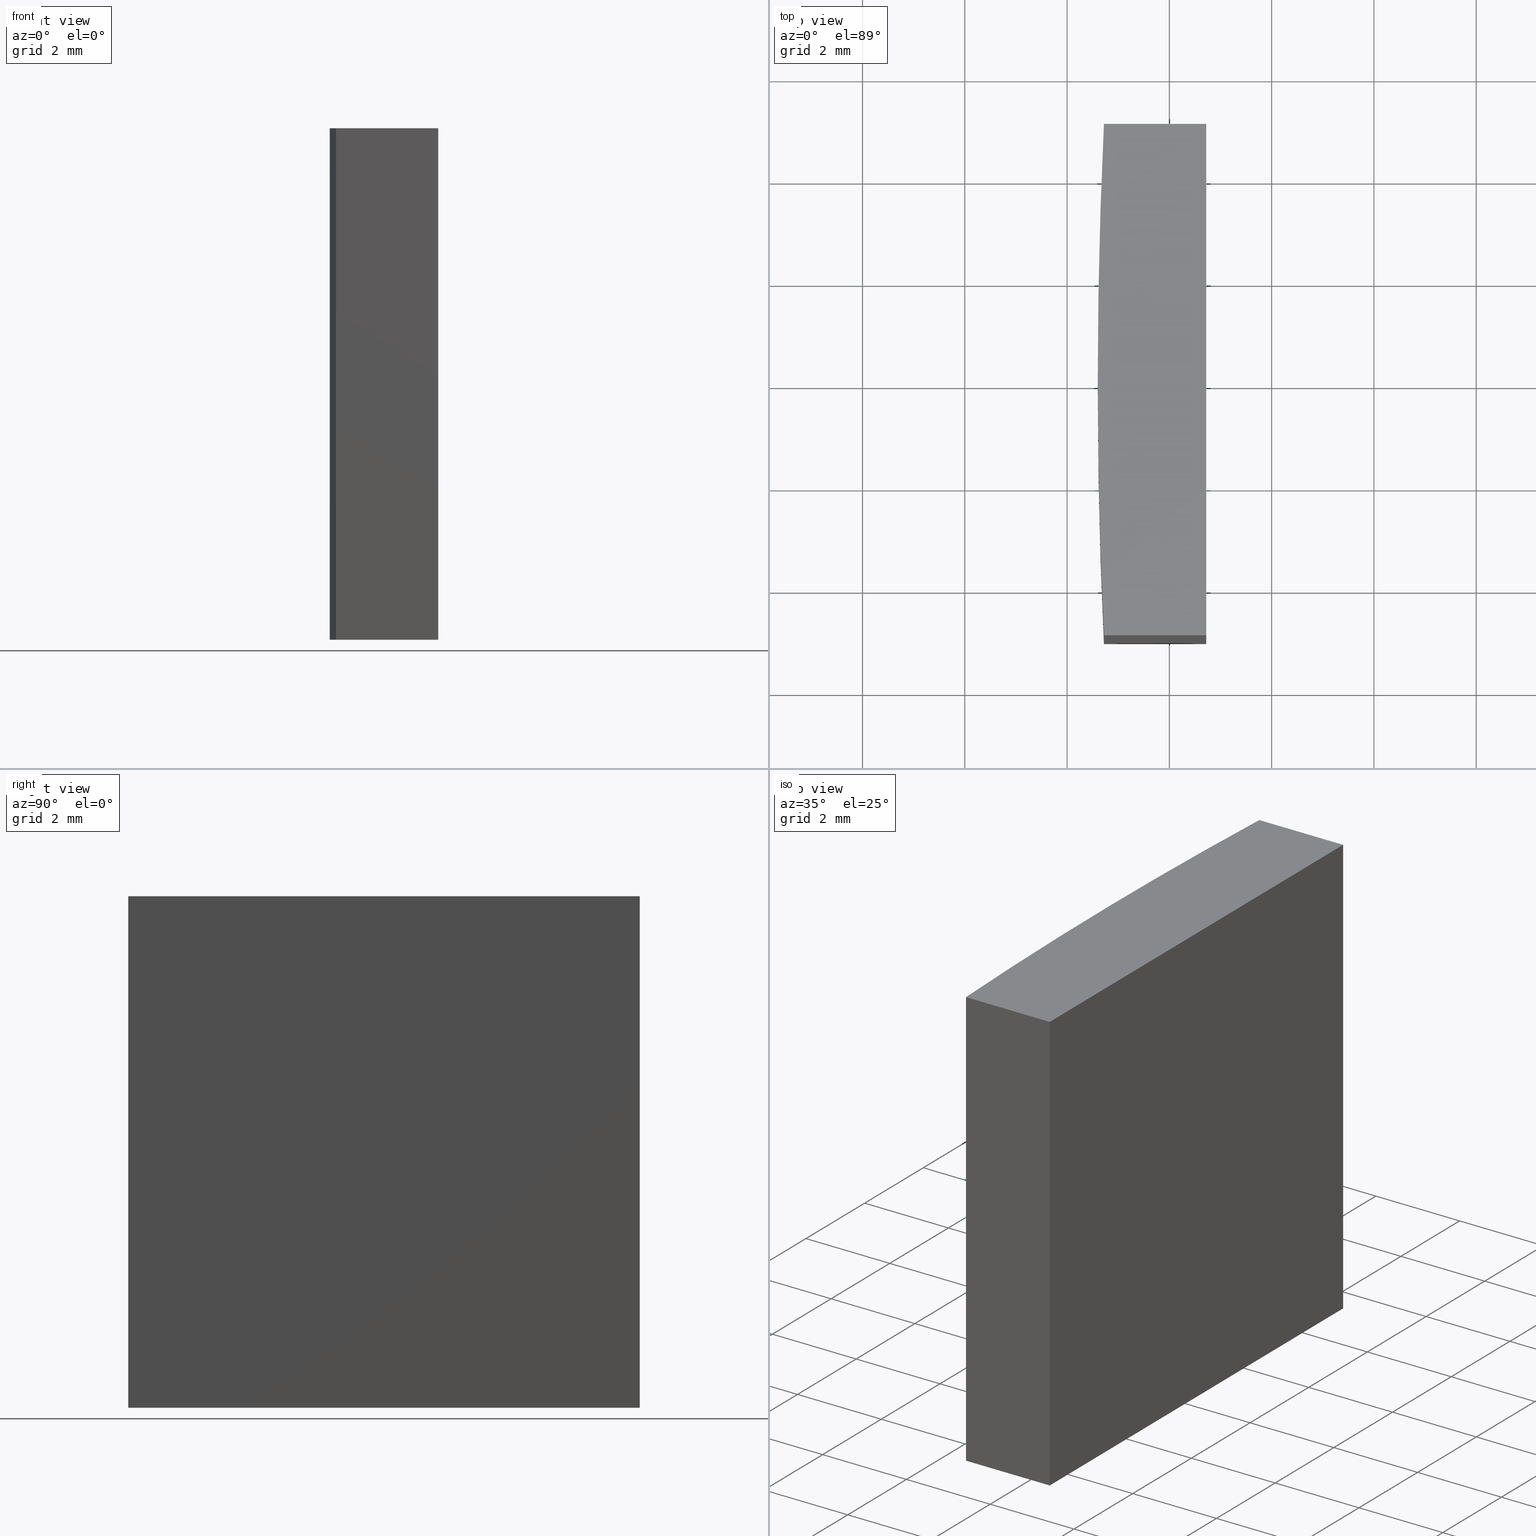
[diagram: canonical four-view strip — front | top / right | iso, engineering-drawing reading convention]
A machine part, canonical four-view strip (front | top / right | iso — engineering-drawing reading convention). The complete STEP part file that produces these views, byte-faithful:
ISO-10303-21;
HEADER;
FILE_DESCRIPTION (( 'STEP AP203' ),
    '1' );
FILE_NAME ('155524.STEP',
    '2024-05-13T03:17:25',
    ( '' ),
    ( '' ),
    'SwSTEP 2.0',
    'SolidWorks 2020',
    '' );
FILE_SCHEMA (( 'CONFIG_CONTROL_DESIGN' ));
ENDSEC;

DATA;
#1 = DIRECTION ( 'NONE',  ( -1.000000000000000000, 0.000000000000000000, 0.000000000000000000 ) ) ;
#2 = AXIS2_PLACEMENT_3D ( 'NONE', #149, #51, #48 ) ;
#3 = VERTEX_POINT ( 'NONE', #7 ) ;
#4 = FACE_OUTER_BOUND ( 'NONE', #53, .T. ) ;
#5 = DATE_AND_TIME ( #52, #150 ) ;
#6 = PERSON_AND_ORGANIZATION_ROLE ( 'classification_officer' ) ;
#7 = CARTESIAN_POINT ( 'NONE',  ( -101.2790394997939529, -5.000000000000000888, 0.000000000000000000 ) ) ;
#8 = AXIS2_PLACEMENT_3D ( 'NONE', #268, #106, #17 ) ;
#9 = LOCAL_TIME ( 11, 17, 25.00000000000000000, #25 ) ;
#10 = APPROVAL_STATUS ( 'not_yet_approved' ) ;
#11 = APPLICATION_PROTOCOL_DEFINITION ( 'international standard', 'config_control_design', 1994, #183 ) ;
#12 = ORIENTED_EDGE ( 'NONE', *, *, #160, .F. ) ;
#13 = PERSON_AND_ORGANIZATION_ROLE ( 'design_owner' ) ;
#14 = ORIENTED_EDGE ( 'NONE', *, *, #24, .F. ) ;
#15 = CC_DESIGN_APPROVAL ( #147, ( #114 ) ) ;
#16 = FACE_OUTER_BOUND ( 'NONE', #70, .T. ) ;
#17 = DIRECTION ( 'NONE',  ( 1.000000000000000000, 0.000000000000000000, 0.000000000000000000 ) ) ;
#18 = ORIENTED_EDGE ( 'NONE', *, *, #109, .T. ) ;
#19 = LINE ( 'NONE', #163, #231 ) ;
#20 = CARTESIAN_POINT ( 'NONE',  ( 0.000000000000000000, 0.000000000000000000, 10.00000000000000000 ) ) ;
#21 = VECTOR ( 'NONE', #257, 1000.000000000000000 ) ;
#22 = EDGE_CURVE ( 'NONE', #153, #134, #55, .T. ) ;
#23 = APPROVAL_PERSON_ORGANIZATION ( #94, #145, #133 ) ;
#24 = EDGE_CURVE ( 'NONE', #153, #186, #138, .T. ) ;
#25 = COORDINATED_UNIVERSAL_TIME_OFFSET ( 8, 0, .AHEAD. ) ;
#26 = PERSON_AND_ORGANIZATION ( #202, #272 ) ;
#27 = VERTEX_POINT ( 'NONE', #222 ) ;
#28 = COORDINATED_UNIVERSAL_TIME_OFFSET ( 8, 0, .AHEAD. ) ;
#29 = PLANE ( 'NONE',  #256 ) ;
#30 = CC_DESIGN_DATE_AND_TIME_ASSIGNMENT ( #187, #263, ( #114 ) ) ;
#31 = AXIS2_PLACEMENT_3D ( 'NONE', #124, #63, #126 ) ;
#32 = ORIENTED_EDGE ( 'NONE', *, *, #160, .T. ) ;
#33 = CARTESIAN_POINT ( 'NONE',  ( 0.000000000000000000, 0.000000000000000000, 0.000000000000000000 ) ) ;
#34 = ORIENTED_EDGE ( 'NONE', *, *, #251, .F. ) ;
#35 = ORIENTED_EDGE ( 'NONE', *, *, #41, .T. ) ;
#36 = DIRECTION ( 'NONE',  ( 0.000000000000000000, -0.000000000000000000, 1.000000000000000000 ) ) ;
#37 = ORIENTED_EDGE ( 'NONE', *, *, #59, .T. ) ;
#38 = LINE ( 'NONE', #200, #50 ) ;
#39 = LINE ( 'NONE', #252, #198 ) ;
#40 = CYLINDRICAL_SURFACE ( 'NONE', #89, 103.4000000000000057 ) ;
#41 = EDGE_CURVE ( 'NONE', #57, #3, #199, .T. ) ;
#42 = LINE ( 'NONE', #167, #21 ) ;
#43 = AXIS2_PLACEMENT_3D ( 'NONE', #125, #205, #79 ) ;
#44 = EDGE_CURVE ( 'NONE', #220, #153, #227, .T. ) ;
#45 = AXIS2_PLACEMENT_3D ( 'NONE', #60, #203, #178 ) ;
#46 = VECTOR ( 'NONE', #82, 1000.000000000000000 ) ;
#47 = CC_DESIGN_DATE_AND_TIME_ASSIGNMENT ( #196, #92, ( #264 ) ) ;
#48 = DIRECTION ( 'NONE',  ( 1.000000000000000000, 0.000000000000000000, -0.000000000000000000 ) ) ;
#49 = DIRECTION ( 'NONE',  ( 0.000000000000000000, 0.000000000000000000, 1.000000000000000000 ) ) ;
#50 = VECTOR ( 'NONE', #159, 1000.000000000000000 ) ;
#51 = DIRECTION ( 'NONE',  ( 0.000000000000000000, 0.000000000000000000, 1.000000000000000000 ) ) ;
#52 = CALENDAR_DATE ( 2024, 13, 5 ) ;
#53 = EDGE_LOOP ( 'NONE', ( #116, #246, #112, #161, #18 ) ) ;
#54 = APPROVAL_ROLE ( '' ) ;
#55 = CIRCLE ( 'NONE', #31, 103.4000000000000057 ) ;
#56 = EDGE_LOOP ( 'NONE', ( #156, #158, #99, #35 ) ) ;
#57 = VERTEX_POINT ( 'NONE', #225 ) ;
#58 = COORDINATED_UNIVERSAL_TIME_OFFSET ( 8, 0, .AHEAD. ) ;
#59 = EDGE_CURVE ( 'NONE', #117, #3, #204, .T. ) ;
#60 = CARTESIAN_POINT ( 'NONE',  ( 0.000000000000000000, 0.000000000000000000, 0.000000000000000000 ) ) ;
#61 = VERTEX_POINT ( 'NONE', #87 ) ;
#62 = CARTESIAN_POINT ( 'NONE',  ( -103.2790394997939529, -5.000000000000000888, 10.00000000000000000 ) ) ;
#63 = DIRECTION ( 'NONE',  ( 0.000000000000000000, 0.000000000000000000, 1.000000000000000000 ) ) ;
#64 = DIRECTION ( 'NONE',  ( -0.000000000000000000, -0.000000000000000000, -1.000000000000000000 ) ) ;
#65 = LINE ( 'NONE', #123, #206 ) ;
#66 = APPROVAL ( #266, 'δָ��' ) ;
#67 = ORIENTED_EDGE ( 'NONE', *, *, #235, .T. ) ;
#68 = COORDINATED_UNIVERSAL_TIME_OFFSET ( 8, 0, .AHEAD. ) ;
#69 = PRODUCT_RELATED_PRODUCT_CATEGORY ( 'detail', '', ( #238 ) ) ;
#70 = EDGE_LOOP ( 'NONE', ( #12, #162, #81, #193, #240 ) ) ;
#71 = MECHANICAL_CONTEXT ( 'NONE', #115, 'mechanical' ) ;
#72 = FACE_OUTER_BOUND ( 'NONE', #73, .T. ) ;
#73 = EDGE_LOOP ( 'NONE', ( #37, #97, #248, #152 ) ) ;
#74 = VERTEX_POINT ( 'NONE', #155 ) ;
#75 = CALENDAR_DATE ( 2024, 13, 5 ) ;
#76 = ORIENTED_EDGE ( 'NONE', *, *, #229, .T. ) ;
#77 = ADVANCED_FACE ( 'NONE', ( #72 ), #29, .F. ) ;
#78 = ORIENTED_EDGE ( 'NONE', *, *, #229, .F. ) ;
#79 = DIRECTION ( 'NONE',  ( -1.000000000000000000, 0.000000000000000000, 0.000000000000000000 ) ) ;
#80 = EDGE_LOOP ( 'NONE', ( #14, #190, #76, #32 ) ) ;
#81 = ORIENTED_EDGE ( 'NONE', *, *, #131, .F. ) ;
#82 = DIRECTION ( 'NONE',  ( -0.000000000000000000, -0.000000000000000000, -1.000000000000000000 ) ) ;
#83 = EDGE_LOOP ( 'NONE', ( #105, #218, #209, #34 ) ) ;
#84 = DIRECTION ( 'NONE',  ( -0.000000000000000000, -0.000000000000000000, -1.000000000000000000 ) ) ;
#85 = AXIS2_PLACEMENT_3D ( 'NONE', #139, #180, #249 ) ;
#86 = DIRECTION ( 'NONE',  ( -0.000000000000000000, 1.000000000000000000, -0.000000000000000000 ) ) ;
#87 = CARTESIAN_POINT ( 'NONE',  ( -101.2790394997939529, 5.000000000000000888, 10.00000000000000000 ) ) ;
#88 = CC_DESIGN_PERSON_AND_ORGANIZATION_ASSIGNMENT ( #26, #188, ( #208 ) ) ;
#89 = AXIS2_PLACEMENT_3D ( 'NONE', #20, #84, #164 ) ;
#90 = CARTESIAN_POINT ( 'NONE',  ( -103.2790394997939529, -5.000000000000000888, 10.00000000000000000 ) ) ;
#91 = ORIENTED_EDGE ( 'NONE', *, *, #171, .T. ) ;
#92 = DATE_TIME_ROLE ( 'creation_date' ) ;
#93 = CC_DESIGN_PERSON_AND_ORGANIZATION_ASSIGNMENT ( #262, #13, ( #238 ) ) ;
#94 = PERSON_AND_ORGANIZATION ( #202, #272 ) ;
#95 = CC_DESIGN_APPROVAL ( #145, ( #208 ) ) ;
#96 = CALENDAR_DATE ( 2024, 13, 5 ) ;
#97 = ORIENTED_EDGE ( 'NONE', *, *, #41, .F. ) ;
#98 = PERSON_AND_ORGANIZATION ( #202, #272 ) ;
#99 = ORIENTED_EDGE ( 'NONE', *, *, #255, .F. ) ;
#100 =( NAMED_UNIT ( * ) SI_UNIT ( $, .STERADIAN. ) SOLID_ANGLE_UNIT ( ) );
#101 = AXIS2_PLACEMENT_3D ( 'NONE', #269, #219, #197 ) ;
#102 = CARTESIAN_POINT ( 'NONE',  ( -103.4000000000000057, 0.000000000000000000, 0.000000000000000000 ) ) ;
#103 = DIRECTION ( 'NONE',  ( -1.000000000000000000, -0.000000000000000000, -0.000000000000000000 ) ) ;
#104 = ADVANCED_FACE ( 'NONE', ( #244 ), #217, .F. ) ;
#105 = ORIENTED_EDGE ( 'NONE', *, *, #22, .F. ) ;
#106 = DIRECTION ( 'NONE',  ( 0.000000000000000000, 0.000000000000000000, 1.000000000000000000 ) ) ;
#107 = CARTESIAN_POINT ( 'NONE',  ( -103.2790394997939529, -5.000000000000000888, 0.000000000000000000 ) ) ;
#108 = LOCAL_TIME ( 11, 17, 25.00000000000000000, #175 ) ;
#109 = EDGE_CURVE ( 'NONE', #61, #220, #42, .T. ) ;
#110 = VECTOR ( 'NONE', #273, 1000.000000000000000 ) ;
#111 = PERSON_AND_ORGANIZATION ( #202, #272 ) ;
#112 = ORIENTED_EDGE ( 'NONE', *, *, #130, .T. ) ;
#113 = PERSON_AND_ORGANIZATION ( #202, #272 ) ;
#114 = SECURITY_CLASSIFICATION ( '', '', #214 ) ;
#115 = APPLICATION_CONTEXT ( 'configuration controlled 3d designs of mechanical parts and assemblies' ) ;
#116 = ORIENTED_EDGE ( 'NONE', *, *, #44, .T. ) ;
#117 = VERTEX_POINT ( 'NONE', #172 ) ;
#118 = UNCERTAINTY_MEASURE_WITH_UNIT (LENGTH_MEASURE( 1.000000000000000082E-05 ), #174, 'distance_accuracy_value', 'NONE');
#119 = CARTESIAN_POINT ( 'NONE',  ( -103.4000000000000057, 0.000000000000000000, 10.00000000000000000 ) ) ;
#120 = MANIFOLD_SOLID_BREP ( '͹̨-����1', #191 ) ;
#121 = PLANE ( 'NONE',  #85 ) ;
#122 = DIRECTION ( 'NONE',  ( -0.000000000000000000, -0.000000000000000000, -1.000000000000000000 ) ) ;
#123 = CARTESIAN_POINT ( 'NONE',  ( -101.2790394997939529, 5.000000000000000888, 10.00000000000000000 ) ) ;
#124 = CARTESIAN_POINT ( 'NONE',  ( 0.000000000000000000, 0.000000000000000000, 10.00000000000000000 ) ) ;
#125 = CARTESIAN_POINT ( 'NONE',  ( 0.000000000000000000, 0.000000000000000000, 10.00000000000000000 ) ) ;
#126 = DIRECTION ( 'NONE',  ( 1.000000000000000000, 0.000000000000000000, 0.000000000000000000 ) ) ;
#127 = ADVANCED_FACE ( 'NONE', ( #4 ), #234, .T. ) ;
#128 = VECTOR ( 'NONE', #223, 1000.000000000000000 ) ;
#129 = CC_DESIGN_APPROVAL ( #66, ( #264 ) ) ;
#130 = EDGE_CURVE ( 'NONE', #134, #57, #258, .T. ) ;
#131 = EDGE_CURVE ( 'NONE', #3, #27, #270, .T. ) ;
#132 = PERSON_AND_ORGANIZATION_ROLE ( 'creator' ) ;
#133 = APPROVAL_ROLE ( '' ) ;
#134 = VERTEX_POINT ( 'NONE', #62 ) ;
#135 = APPLICATION_PROTOCOL_DEFINITION ( 'international standard', 'config_control_design', 1994, #115 ) ;
#136 = CIRCLE ( 'NONE', #8, 103.4000000000000057 ) ;
#137 = APPROVAL_DATE_TIME ( #241, #147 ) ;
#138 = LINE ( 'NONE', #119, #265 ) ;
#139 = CARTESIAN_POINT ( 'NONE',  ( -103.2790394997939529, 5.000000000000000888, 10.00000000000000000 ) ) ;
#140 = CARTESIAN_POINT ( 'NONE',  ( -101.2790394997939529, 5.000000000000000888, 0.000000000000000000 ) ) ;
#141 = DESIGN_CONTEXT ( 'detailed design', #183, 'design' ) ;
#142 = CARTESIAN_POINT ( 'NONE',  ( -103.4000000000000057, 0.000000000000000000, 10.00000000000000000 ) ) ;
#143 = CYLINDRICAL_SURFACE ( 'NONE', #43, 103.4000000000000057 ) ;
#144 = VECTOR ( 'NONE', #86, 1000.000000000000000 ) ;
#145 = APPROVAL ( #151, 'δָ��' ) ;
#146 = APPROVAL_PERSON_ORGANIZATION ( #157, #66, #177 ) ;
#147 = APPROVAL ( #10, 'δָ��' ) ;
#148 = APPROVAL_DATE_TIME ( #213, #145 ) ;
#149 = CARTESIAN_POINT ( 'NONE',  ( 0.000000000000000000, 0.000000000000000000, 10.00000000000000000 ) ) ;
#150 = LOCAL_TIME ( 11, 17, 25.00000000000000000, #68 ) ;
#151 = APPROVAL_STATUS ( 'not_yet_approved' ) ;
#152 = ORIENTED_EDGE ( 'NONE', *, *, #251, .T. ) ;
#153 = VERTEX_POINT ( 'NONE', #142 ) ;
#154 = CALENDAR_DATE ( 2024, 13, 5 ) ;
#155 = CARTESIAN_POINT ( 'NONE',  ( -103.2790394997939529, 5.000000000000000888, 0.000000000000000000 ) ) ;
#156 = ORIENTED_EDGE ( 'NONE', *, *, #131, .T. ) ;
#157 = PERSON_AND_ORGANIZATION ( #202, #272 ) ;
#158 = ORIENTED_EDGE ( 'NONE', *, *, #171, .F. ) ;
#159 = DIRECTION ( 'NONE',  ( -0.000000000000000000, -0.000000000000000000, -1.000000000000000000 ) ) ;
#160 = EDGE_CURVE ( 'NONE', #74, #186, #136, .T. ) ;
#161 = ORIENTED_EDGE ( 'NONE', *, *, #255, .T. ) ;
#162 = ORIENTED_EDGE ( 'NONE', *, *, #235, .F. ) ;
#163 = CARTESIAN_POINT ( 'NONE',  ( -103.2790394997939529, 5.000000000000000888, 0.000000000000000000 ) ) ;
#164 = DIRECTION ( 'NONE',  ( -1.000000000000000000, 0.000000000000000000, 0.000000000000000000 ) ) ;
#165 = DIRECTION ( 'NONE',  ( 1.000000000000000000, 0.000000000000000000, 0.000000000000000000 ) ) ;
#166 = DIRECTION ( 'NONE',  ( -0.000000000000000000, 1.000000000000000000, -0.000000000000000000 ) ) ;
#167 = CARTESIAN_POINT ( 'NONE',  ( -103.2790394997939529, 5.000000000000000888, 10.00000000000000000 ) ) ;
#168 = ADVANCED_FACE ( 'NONE', ( #226 ), #121, .F. ) ;
#169 = CIRCLE ( 'NONE', #45, 103.4000000000000057 ) ;
#170 = DIRECTION ( 'NONE',  ( 0.000000000000000000, 0.000000000000000000, 1.000000000000000000 ) ) ;
#171 = EDGE_CURVE ( 'NONE', #61, #27, #221, .T. ) ;
#172 = CARTESIAN_POINT ( 'NONE',  ( -103.2790394997939529, -5.000000000000000888, 0.000000000000000000 ) ) ;
#173 = ORIENTED_EDGE ( 'NONE', *, *, #109, .F. ) ;
#174 =( LENGTH_UNIT ( ) NAMED_UNIT ( * ) SI_UNIT ( .MILLI., .METRE. ) );
#175 = COORDINATED_UNIVERSAL_TIME_OFFSET ( 8, 0, .AHEAD. ) ;
#176 =( NAMED_UNIT ( * ) PLANE_ANGLE_UNIT ( ) SI_UNIT ( $, .RADIAN. ) );
#177 = APPROVAL_ROLE ( '' ) ;
#178 = DIRECTION ( 'NONE',  ( 1.000000000000000000, 0.000000000000000000, 0.000000000000000000 ) ) ;
#179 = CARTESIAN_POINT ( 'NONE',  ( -101.2790394997939529, -5.000000000000000888, 10.00000000000000000 ) ) ;
#180 = DIRECTION ( 'NONE',  ( 0.000000000000000000, -1.000000000000000000, 0.000000000000000000 ) ) ;
#181 = DIRECTION ( 'NONE',  ( 0.000000000000000000, 0.000000000000000000, 1.000000000000000000 ) ) ;
#182 = PLANE ( 'NONE',  #101 ) ;
#183 = APPLICATION_CONTEXT ( 'configuration controlled 3d designs of mechanical parts and assemblies' ) ;
#184 = CC_DESIGN_PERSON_AND_ORGANIZATION_ASSIGNMENT ( #98, #132, ( #208 ) ) ;
#185 =( GEOMETRIC_REPRESENTATION_CONTEXT ( 3 ) GLOBAL_UNCERTAINTY_ASSIGNED_CONTEXT ( ( #118 ) ) GLOBAL_UNIT_ASSIGNED_CONTEXT ( ( #174, #176, #100 ) ) REPRESENTATION_CONTEXT ( 'NONE', 'WORKASPACE' ) );
#186 = VERTEX_POINT ( 'NONE', #102 ) ;
#187 = DATE_AND_TIME ( #154, #242 ) ;
#188 = PERSON_AND_ORGANIZATION_ROLE ( 'design_supplier' ) ;
#189 = CC_DESIGN_PERSON_AND_ORGANIZATION_ASSIGNMENT ( #111, #6, ( #114 ) ) ;
#190 = ORIENTED_EDGE ( 'NONE', *, *, #44, .F. ) ;
#191 = CLOSED_SHELL ( 'NONE', ( #259, #245, #77, #104, #168, #127, #195 ) ) ;
#192 = APPROVAL_DATE_TIME ( #5, #66 ) ;
#193 = ORIENTED_EDGE ( 'NONE', *, *, #59, .F. ) ;
#194 = DIRECTION ( 'NONE',  ( 0.000000000000000000, 1.000000000000000000, 0.000000000000000000 ) ) ;
#195 = ADVANCED_FACE ( 'NONE', ( #16 ), #182, .F. ) ;
#196 = DATE_AND_TIME ( #243, #9 ) ;
#197 = DIRECTION ( 'NONE',  ( 1.000000000000000000, 0.000000000000000000, -0.000000000000000000 ) ) ;
#198 = VECTOR ( 'NONE', #64, 1000.000000000000000 ) ;
#199 = LINE ( 'NONE', #179, #210 ) ;
#200 = CARTESIAN_POINT ( 'NONE',  ( -103.2790394997939529, 5.000000000000000888, 10.00000000000000000 ) ) ;
#201 = CARTESIAN_POINT ( 'NONE',  ( 0.000000000000000000, 0.000000000000000000, 10.00000000000000000 ) ) ;
#202 = PERSON ( 'δָ��', 'δָ��', 'δָ��', ('δָ��'), ('δָ��'), ('δָ��') ) ;
#203 = DIRECTION ( 'NONE',  ( 0.000000000000000000, 0.000000000000000000, 1.000000000000000000 ) ) ;
#204 = LINE ( 'NONE', #107, #110 ) ;
#205 = DIRECTION ( 'NONE',  ( -0.000000000000000000, -0.000000000000000000, -1.000000000000000000 ) ) ;
#206 = VECTOR ( 'NONE', #166, 1000.000000000000000 ) ;
#207 = EDGE_CURVE ( 'NONE', #186, #117, #169, .T. ) ;
#208 = PRODUCT_DEFINITION_FORMATION_WITH_SPECIFIED_SOURCE ( '�κ�', '', #238, .NOT_KNOWN. ) ;
#209 = ORIENTED_EDGE ( 'NONE', *, *, #207, .T. ) ;
#210 = VECTOR ( 'NONE', #250, 1000.000000000000000 ) ;
#211 = PERSON_AND_ORGANIZATION_ROLE ( 'creator' ) ;
#212 = PRODUCT_DEFINITION_SHAPE ( 'NONE', 'NONE',  #264 ) ;
#213 = DATE_AND_TIME ( #96, #232 ) ;
#214 = SECURITY_CLASSIFICATION_LEVEL ( 'unclassified' ) ;
#215 = AXIS2_PLACEMENT_3D ( 'NONE', #201, #181, #165 ) ;
#216 = SHAPE_DEFINITION_REPRESENTATION ( #212, #274 ) ;
#217 = PLANE ( 'NONE',  #260 ) ;
#218 = ORIENTED_EDGE ( 'NONE', *, *, #24, .T. ) ;
#219 = DIRECTION ( 'NONE',  ( 0.000000000000000000, 0.000000000000000000, 1.000000000000000000 ) ) ;
#220 = VERTEX_POINT ( 'NONE', #224 ) ;
#221 = LINE ( 'NONE', #247, #46 ) ;
#222 = CARTESIAN_POINT ( 'NONE',  ( -101.2790394997939529, 5.000000000000000888, 0.000000000000000000 ) ) ;
#223 = DIRECTION ( 'NONE',  ( 1.000000000000000000, 0.000000000000000000, 0.000000000000000000 ) ) ;
#224 = CARTESIAN_POINT ( 'NONE',  ( -103.2790394997939529, 5.000000000000000888, 10.00000000000000000 ) ) ;
#225 = CARTESIAN_POINT ( 'NONE',  ( -101.2790394997939529, -5.000000000000000888, 10.00000000000000000 ) ) ;
#226 = FACE_OUTER_BOUND ( 'NONE', #237, .T. ) ;
#227 = CIRCLE ( 'NONE', #215, 103.4000000000000057 ) ;
#228 = APPROVAL_PERSON_ORGANIZATION ( #113, #147, #54 ) ;
#229 = EDGE_CURVE ( 'NONE', #220, #74, #38, .T. ) ;
#230 = CARTESIAN_POINT ( 'NONE',  ( -101.2790394997939529, 5.000000000000000888, 10.00000000000000000 ) ) ;
#231 = VECTOR ( 'NONE', #103, 1000.000000000000000 ) ;
#232 = LOCAL_TIME ( 11, 17, 25.00000000000000000, #58 ) ;
#233 = CC_DESIGN_PERSON_AND_ORGANIZATION_ASSIGNMENT ( #236, #211, ( #264 ) ) ;
#234 = PLANE ( 'NONE',  #2 ) ;
#235 = EDGE_CURVE ( 'NONE', #27, #74, #19, .T. ) ;
#236 = PERSON_AND_ORGANIZATION ( #202, #272 ) ;
#237 = EDGE_LOOP ( 'NONE', ( #67, #78, #173, #91 ) ) ;
#238 = PRODUCT ( '155524', '155524', '', ( #71 ) ) ;
#239 = DIRECTION ( 'NONE',  ( 1.000000000000000000, 0.000000000000000000, 0.000000000000000000 ) ) ;
#240 = ORIENTED_EDGE ( 'NONE', *, *, #207, .F. ) ;
#241 = DATE_AND_TIME ( #75, #108 ) ;
#242 = LOCAL_TIME ( 11, 17, 25.00000000000000000, #28 ) ;
#243 = CALENDAR_DATE ( 2024, 13, 5 ) ;
#244 = FACE_OUTER_BOUND ( 'NONE', #56, .T. ) ;
#245 = ADVANCED_FACE ( 'NONE', ( #254 ), #40, .T. ) ;
#246 = ORIENTED_EDGE ( 'NONE', *, *, #22, .T. ) ;
#247 = CARTESIAN_POINT ( 'NONE',  ( -101.2790394997939529, 5.000000000000000888, 10.00000000000000000 ) ) ;
#248 = ORIENTED_EDGE ( 'NONE', *, *, #130, .F. ) ;
#249 = DIRECTION ( 'NONE',  ( 0.000000000000000000, -0.000000000000000000, -1.000000000000000000 ) ) ;
#250 = DIRECTION ( 'NONE',  ( -0.000000000000000000, -0.000000000000000000, -1.000000000000000000 ) ) ;
#251 = EDGE_CURVE ( 'NONE', #134, #117, #39, .T. ) ;
#252 = CARTESIAN_POINT ( 'NONE',  ( -103.2790394997939529, -5.000000000000000888, 10.00000000000000000 ) ) ;
#253 = CC_DESIGN_SECURITY_CLASSIFICATION ( #114, ( #208 ) ) ;
#254 = FACE_OUTER_BOUND ( 'NONE', #80, .T. ) ;
#255 = EDGE_CURVE ( 'NONE', #57, #61, #65, .T. ) ;
#256 = AXIS2_PLACEMENT_3D ( 'NONE', #267, #194, #36 ) ;
#257 = DIRECTION ( 'NONE',  ( -1.000000000000000000, -0.000000000000000000, -0.000000000000000000 ) ) ;
#258 = LINE ( 'NONE', #90, #128 ) ;
#259 = ADVANCED_FACE ( 'NONE', ( #271 ), #143, .T. ) ;
#260 = AXIS2_PLACEMENT_3D ( 'NONE', #230, #1, #170 ) ;
#261 = AXIS2_PLACEMENT_3D ( 'NONE', #33, #49, #239 ) ;
#262 = PERSON_AND_ORGANIZATION ( #202, #272 ) ;
#263 = DATE_TIME_ROLE ( 'classification_date' ) ;
#264 = PRODUCT_DEFINITION ( 'δ֪', '', #208, #141 ) ;
#265 = VECTOR ( 'NONE', #122, 1000.000000000000000 ) ;
#266 = APPROVAL_STATUS ( 'not_yet_approved' ) ;
#267 = CARTESIAN_POINT ( 'NONE',  ( -103.2790394997939529, -5.000000000000000888, 10.00000000000000000 ) ) ;
#268 = CARTESIAN_POINT ( 'NONE',  ( 0.000000000000000000, 0.000000000000000000, 0.000000000000000000 ) ) ;
#269 = CARTESIAN_POINT ( 'NONE',  ( 0.000000000000000000, 0.000000000000000000, 0.000000000000000000 ) ) ;
#270 = LINE ( 'NONE', #140, #144 ) ;
#271 = FACE_OUTER_BOUND ( 'NONE', #83, .T. ) ;
#272 = ORGANIZATION ( 'δָ��', 'δָ��', '' ) ;
#273 = DIRECTION ( 'NONE',  ( 1.000000000000000000, 0.000000000000000000, 0.000000000000000000 ) ) ;
#274 = ADVANCED_BREP_SHAPE_REPRESENTATION ( '155524', ( #120, #261 ), #185 ) ;
ENDSEC;
END-ISO-10303-21;
